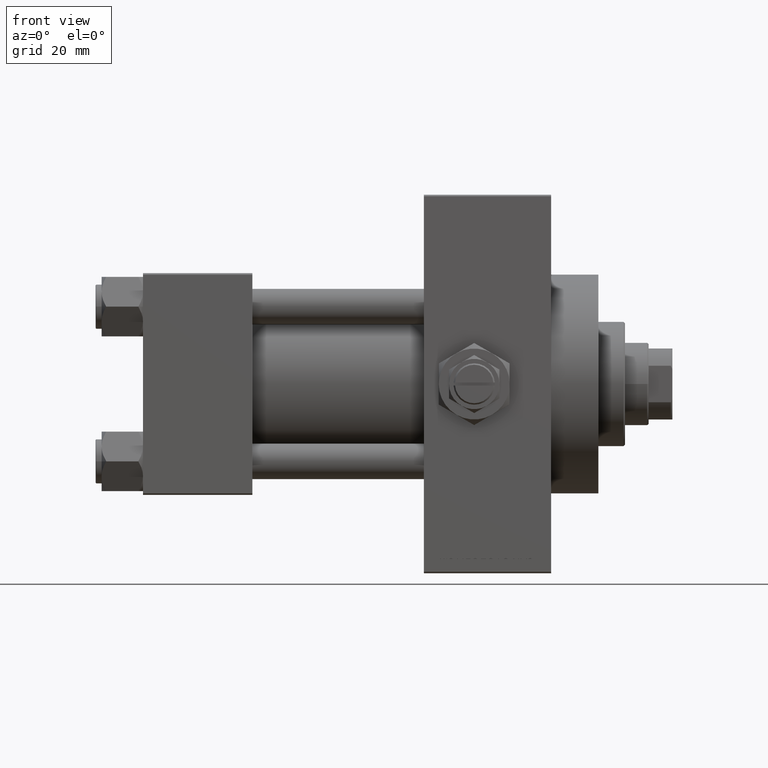
[diagram: clean part render]
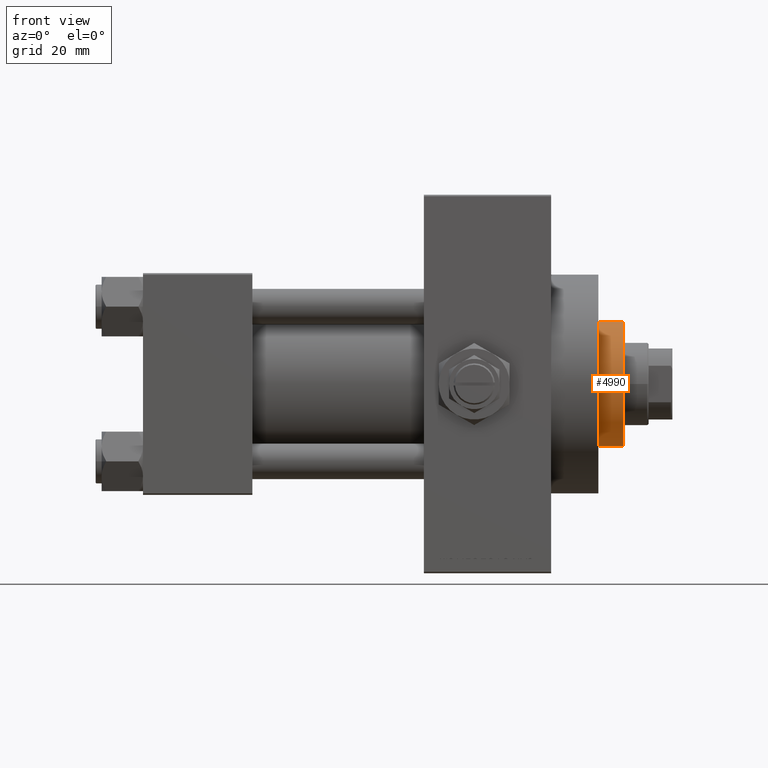
[diagram: same view with one face highlighted and labeled with its STEP entity id]
A machine part, front view. The second image highlights one B-rep face of the part: STEP entity #4990.
In plain terms, the highlighted cylindrical surface (partial cylindrical patch) has radius 21 mm, axis along (-1, 0, 0).
Its self-contained STEP definition (entity closure, byte-faithful):
#2227 = CYLINDRICAL_SURFACE ( 'NONE', #40184, 21.00000000000000000 ) ;
#2303 = VECTOR ( 'NONE', #13744, 1000.000000000000000 ) ;
#3846 = VECTOR ( 'NONE', #10333, 1000.000000000000000 ) ;
#4937 = CARTESIAN_POINT ( 'NONE',  ( 21.00000000000000000, 2.571758278209441661E-15, 43.25999999999999801 ) ) ;
#4990 = ADVANCED_FACE ( 'NONE', ( #6653 ), #2227, .T. ) ;
#5706 = DIRECTION ( 'NONE',  ( 1.000000000000000000, 0.000000000000000000, 0.000000000000000000 ) ) ;
#6128 = DIRECTION ( 'NONE',  ( 0.000000000000000000, 0.000000000000000000, -1.000000000000000000 ) ) ;
#6653 = FACE_OUTER_BOUND ( 'NONE', #32608, .T. ) ;
#9878 = DIRECTION ( 'NONE',  ( 0.000000000000000000, 0.000000000000000000, 1.000000000000000000 ) ) ;
#10333 = DIRECTION ( 'NONE',  ( -0.000000000000000000, -0.000000000000000000, -1.000000000000000000 ) ) ;
#10765 = ORIENTED_EDGE ( 'NONE', *, *, #32713, .T. ) ;
#10831 = CARTESIAN_POINT ( 'NONE',  ( -21.00000000000000000, 0.000000000000000000, 43.25999999999999801 ) ) ;
#13058 = VERTEX_POINT ( 'NONE', #4937 ) ;
#13744 = DIRECTION ( 'NONE',  ( -0.000000000000000000, -0.000000000000000000, -1.000000000000000000 ) ) ;
#14246 = CIRCLE ( 'NONE', #26903, 21.00000000000000000 ) ;
#14561 = DIRECTION ( 'NONE',  ( -0.000000000000000000, -0.000000000000000000, -1.000000000000000000 ) ) ;
#15306 = VERTEX_POINT ( 'NONE', #10831 ) ;
#18143 = ORIENTED_EDGE ( 'NONE', *, *, #35245, .T. ) ;
#19716 = ORIENTED_EDGE ( 'NONE', *, *, #31184, .F. ) ;
#20708 = CARTESIAN_POINT ( 'NONE',  ( 21.00000000000000000, 2.571758278209441661E-15, 52.25999999999999801 ) ) ;
#20986 = LINE ( 'NONE', #21726, #3846 ) ;
#21726 = CARTESIAN_POINT ( 'NONE',  ( -21.00000000000000000, 0.000000000000000000, 52.25999999999999801 ) ) ;
#22216 = AXIS2_PLACEMENT_3D ( 'NONE', #24208, #6128, #43767 ) ;
#23200 = ORIENTED_EDGE ( 'NONE', *, *, #36582, .T. ) ;
#23475 = VERTEX_POINT ( 'NONE', #36477 ) ;
#24208 = CARTESIAN_POINT ( 'NONE',  ( 0.000000000000000000, 0.000000000000000000, 51.75999999999999801 ) ) ;
#26903 = AXIS2_PLACEMENT_3D ( 'NONE', #42858, #9878, #5706 ) ;
#27764 = CIRCLE ( 'NONE', #22216, 21.00000000000000000 ) ;
#31184 = EDGE_CURVE ( 'NONE', #23475, #15306, #20986, .T. ) ;
#32608 = EDGE_LOOP ( 'NONE', ( #23200, #10765, #18143, #19716 ) ) ;
#32713 = EDGE_CURVE ( 'NONE', #44087, #13058, #40501, .T. ) ;
#33796 = CARTESIAN_POINT ( 'NONE',  ( 21.00000000000000000, 2.571758278209441661E-15, 51.75999999999999801 ) ) ;
#35245 = EDGE_CURVE ( 'NONE', #13058, #15306, #14246, .T. ) ;
#36477 = CARTESIAN_POINT ( 'NONE',  ( -21.00000000000000000, 0.000000000000000000, 51.75999999999999801 ) ) ;
#36582 = EDGE_CURVE ( 'NONE', #23475, #44087, #27764, .T. ) ;
#36865 = DIRECTION ( 'NONE',  ( -1.000000000000000000, 0.000000000000000000, 0.000000000000000000 ) ) ;
#40184 = AXIS2_PLACEMENT_3D ( 'NONE', #47769, #14561, #36865 ) ;
#40501 = LINE ( 'NONE', #20708, #2303 ) ;
#42858 = CARTESIAN_POINT ( 'NONE',  ( 0.000000000000000000, 0.000000000000000000, 43.25999999999999801 ) ) ;
#43767 = DIRECTION ( 'NONE',  ( 1.000000000000000000, 0.000000000000000000, 0.000000000000000000 ) ) ;
#44087 = VERTEX_POINT ( 'NONE', #33796 ) ;
#47769 = CARTESIAN_POINT ( 'NONE',  ( 0.000000000000000000, 0.000000000000000000, 52.25999999999999801 ) ) ;